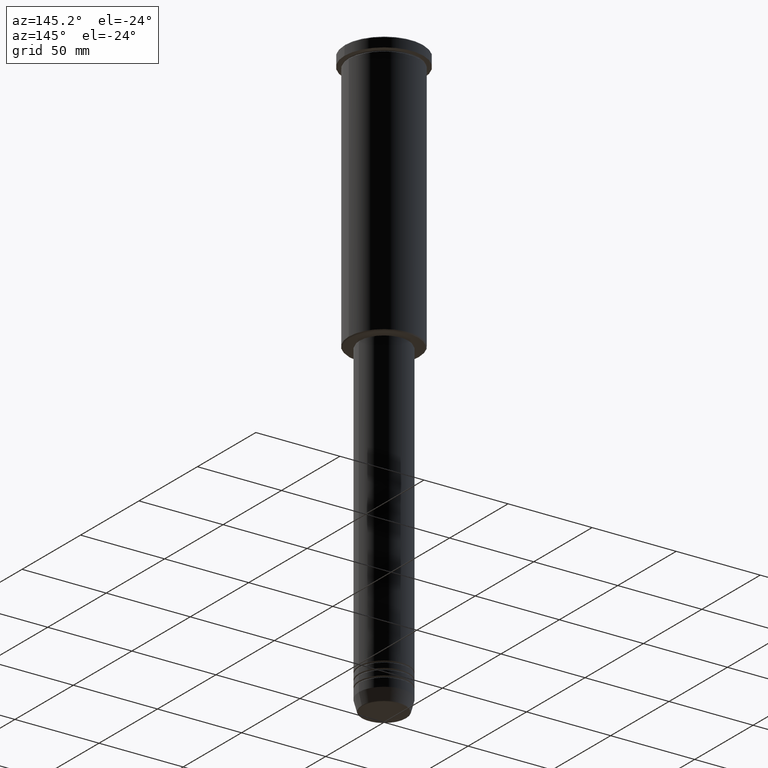
[diagram: clean part render]
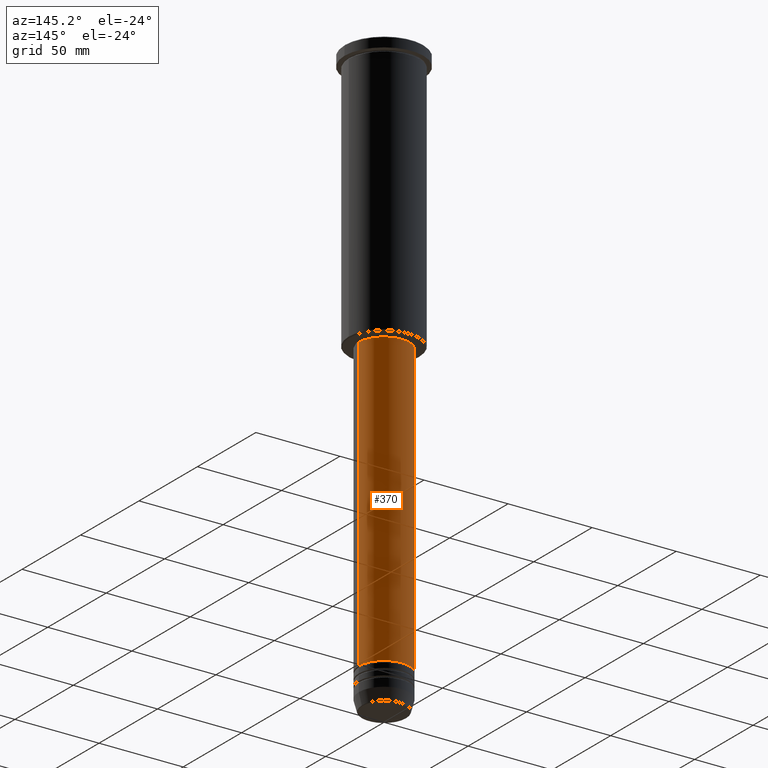
[diagram: same view with one face highlighted and labeled with its STEP entity id]
A machine part, auxiliary view. The second image highlights one B-rep face of the part: STEP entity #370.
In plain terms, the highlighted cylindrical surface (edge-blend (fillet) strip) has radius 15 mm, axis along (-0, -0, 1).
Its self-contained STEP definition (entity closure, byte-faithful):
#51 = DIRECTION ( 'NONE',  ( 1.000000000000000000, 0.000000000000000000, 0.000000000000000000 ) ) ;
#76 = AXIS2_PLACEMENT_3D ( 'NONE', #245, #420, #1158 ) ;
#105 = VERTEX_POINT ( 'NONE', #672 ) ;
#110 = CARTESIAN_POINT ( 'NONE',  ( -15.00000000000000000, 1.836970198721029589E-15, 0.000000000000000000 ) ) ;
#119 = DIRECTION ( 'NONE',  ( -0.000000000000000000, -0.000000000000000000, 1.000000000000000000 ) ) ;
#126 = EDGE_CURVE ( 'NONE', #105, #374, #483, .T. ) ;
#153 = EDGE_LOOP ( 'NONE', ( #1008, #928, #631, #1013 ) ) ;
#188 = AXIS2_PLACEMENT_3D ( 'NONE', #926, #119, #920 ) ;
#198 = LINE ( 'NONE', #110, #647 ) ;
#245 = CARTESIAN_POINT ( 'NONE',  ( 0.000000000000000000, 0.000000000000000000, -156.9999999999999432 ) ) ;
#285 = CARTESIAN_POINT ( 'NONE',  ( -15.00000000000000000, 1.836970198721029589E-15, -156.9999999999999432 ) ) ;
#292 = CARTESIAN_POINT ( 'NONE',  ( 15.00000000000000000, 0.000000000000000000, -156.9999999999999432 ) ) ;
#370 = ADVANCED_FACE ( 'NONE', ( #578 ), #1033, .T. ) ;
#374 = VERTEX_POINT ( 'NONE', #292 ) ;
#407 = DIRECTION ( 'NONE',  ( -0.000000000000000000, -0.000000000000000000, 1.000000000000000000 ) ) ;
#420 = DIRECTION ( 'NONE',  ( -0.000000000000000000, -0.000000000000000000, 1.000000000000000000 ) ) ;
#483 = LINE ( 'NONE', #495, #891 ) ;
#495 = CARTESIAN_POINT ( 'NONE',  ( 15.00000000000000000, 0.000000000000000000, 0.000000000000000000 ) ) ;
#564 = VERTEX_POINT ( 'NONE', #285 ) ;
#578 = FACE_OUTER_BOUND ( 'NONE', #153, .T. ) ;
#631 = ORIENTED_EDGE ( 'NONE', *, *, #1174, .F. ) ;
#642 = CIRCLE ( 'NONE', #76, 15.00000000000000000 ) ;
#647 = VECTOR ( 'NONE', #744, 1000.000000000000000 ) ;
#672 = CARTESIAN_POINT ( 'NONE',  ( 15.00000000000000000, 0.000000000000000000, -329.9999999999999432 ) ) ;
#744 = DIRECTION ( 'NONE',  ( -0.000000000000000000, -0.000000000000000000, 1.000000000000000000 ) ) ;
#752 = EDGE_CURVE ( 'NONE', #105, #1042, #820, .T. ) ;
#767 = DIRECTION ( 'NONE',  ( -0.000000000000000000, -0.000000000000000000, 1.000000000000000000 ) ) ;
#820 = CIRCLE ( 'NONE', #974, 15.00000000000000000 ) ;
#863 = CARTESIAN_POINT ( 'NONE',  ( 0.000000000000000000, 0.000000000000000000, -329.9999999999999432 ) ) ;
#891 = VECTOR ( 'NONE', #407, 1000.000000000000000 ) ;
#920 = DIRECTION ( 'NONE',  ( 1.000000000000000000, 0.000000000000000000, 0.000000000000000000 ) ) ;
#926 = CARTESIAN_POINT ( 'NONE',  ( 0.000000000000000000, 0.000000000000000000, 0.000000000000000000 ) ) ;
#928 = ORIENTED_EDGE ( 'NONE', *, *, #967, .T. ) ;
#967 = EDGE_CURVE ( 'NONE', #1042, #564, #198, .T. ) ;
#974 = AXIS2_PLACEMENT_3D ( 'NONE', #863, #767, #51 ) ;
#1008 = ORIENTED_EDGE ( 'NONE', *, *, #752, .T. ) ;
#1013 = ORIENTED_EDGE ( 'NONE', *, *, #126, .F. ) ;
#1022 = CARTESIAN_POINT ( 'NONE',  ( -15.00000000000000000, 1.836970198721029589E-15, -329.9999999999999432 ) ) ;
#1033 = CYLINDRICAL_SURFACE ( 'NONE', #188, 15.00000000000000000 ) ;
#1042 = VERTEX_POINT ( 'NONE', #1022 ) ;
#1158 = DIRECTION ( 'NONE',  ( 1.000000000000000000, 0.000000000000000000, 0.000000000000000000 ) ) ;
#1174 = EDGE_CURVE ( 'NONE', #374, #564, #642, .T. ) ;